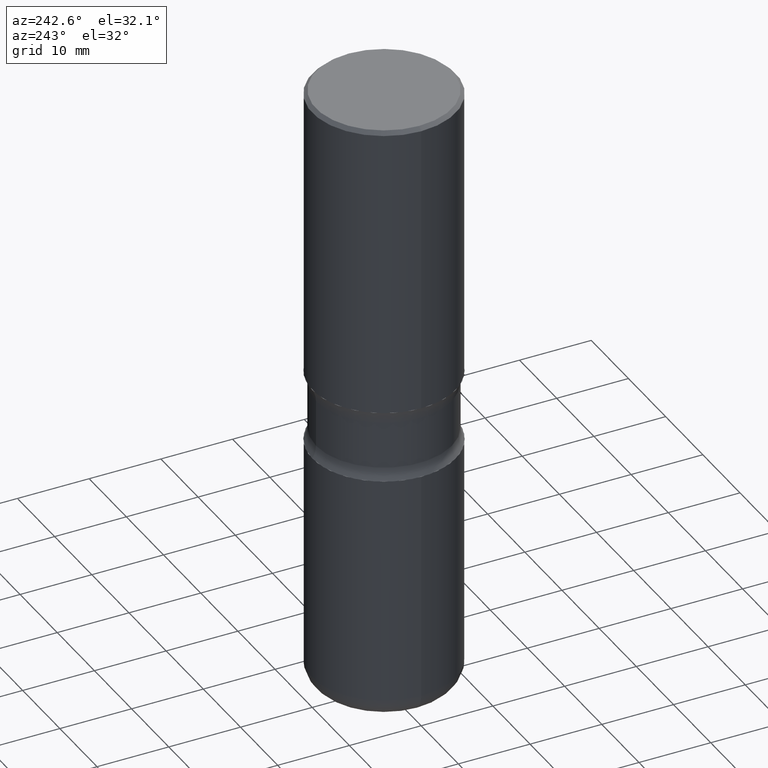
[diagram: clean part render]
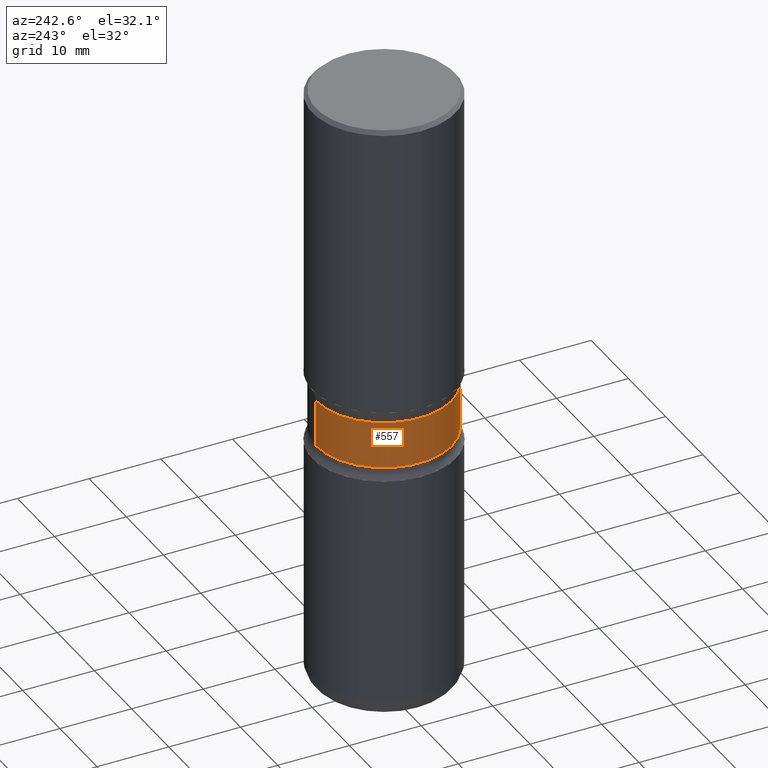
[diagram: same view with one face highlighted and labeled with its STEP entity id]
A machine part, auxiliary view. The second image highlights one B-rep face of the part: STEP entity #557.
In plain terms, the highlighted cylindrical surface (partial cylindrical patch) has radius 9.4869 mm, axis along (0, -0, -1).
Its self-contained STEP definition (entity closure, byte-faithful):
#2 = CARTESIAN_POINT ( 'NONE',  ( 4.752967058016124605E-29, -6.758611084008786993E-15, -1.939668069159900421 ) ) ;
#20 = DIRECTION ( 'NONE',  ( 6.982962677686265922E-15, 1.000000000000000000, -3.657092360996336056E-15 ) ) ;
#30 = DIRECTION ( 'NONE',  ( 2.305016298612844398E-29, -3.692617323746948219E-15, -1.000000000000000000 ) ) ;
#31 = EDGE_CURVE ( 'NONE', #160, #373, #284, .T. ) ;
#37 = CYLINDRICAL_SURFACE ( 'NONE', #344, 0.3735000000000001097 ) ;
#42 = CIRCLE ( 'NONE', #196, 0.3735000000000000542 ) ;
#60 = VECTOR ( 'NONE', #30, 39.37007874015748143 ) ;
#95 = DIRECTION ( 'NONE',  ( 2.305016298612844398E-29, -3.692617323746948219E-15, -1.000000000000000000 ) ) ;
#100 = CARTESIAN_POINT ( 'NONE',  ( 4.159572563337033897E-29, -5.807997939890574032E-15, -1.682231930840099476 ) ) ;
#118 = DIRECTION ( 'NONE',  ( 6.982962677686265922E-15, 1.000000000000000000, -4.388510833195602005E-15 ) ) ;
#158 = CARTESIAN_POINT ( 'NONE',  ( 8.086324728547017721E-29, -1.209862290425256339E-14, -3.385800000000000143 ) ) ;
#160 = VERTEX_POINT ( 'NONE', #351 ) ;
#167 = EDGE_LOOP ( 'NONE', ( #473, #168, #356, #231 ) ) ;
#168 = ORIENTED_EDGE ( 'NONE', *, *, #401, .T. ) ;
#169 = CARTESIAN_POINT ( 'NONE',  ( 2.608136560115902248E-15, 0.3734999999999880638, -3.385800000000001919 ) ) ;
#175 = EDGE_CURVE ( 'NONE', #373, #364, #227, .T. ) ;
#196 = AXIS2_PLACEMENT_3D ( 'NONE', #100, #268, #20 ) ;
#219 = VECTOR ( 'NONE', #549, 39.37007874015748143 ) ;
#227 = CIRCLE ( 'NONE', #444, 0.3735000000000002207 ) ;
#231 = ORIENTED_EDGE ( 'NONE', *, *, #175, .F. ) ;
#268 = DIRECTION ( 'NONE',  ( 2.305016298612844398E-29, -3.692617323746948219E-15, -1.000000000000000000 ) ) ;
#284 = LINE ( 'NONE', #290, #219 ) ;
#290 = CARTESIAN_POINT ( 'NONE',  ( -2.562396002167586553E-15, -0.3735000000000122111, -3.385799999999998811 ) ) ;
#311 = VERTEX_POINT ( 'NONE', #484 ) ;
#319 = CARTESIAN_POINT ( 'NONE',  ( 2.608136560115869116E-15, 0.3734999999999934484, -1.939668069159901753 ) ) ;
#329 = DIRECTION ( 'NONE',  ( 2.305016298612844398E-29, -3.692617323746948219E-15, -1.000000000000000000 ) ) ;
#343 = DIRECTION ( 'NONE',  ( 6.982962677686264344E-15, 1.000000000000000000, -3.657092360996334478E-15 ) ) ;
#344 = AXIS2_PLACEMENT_3D ( 'NONE', #158, #329, #118 ) ;
#351 = CARTESIAN_POINT ( 'NONE',  ( -2.631687031945120480E-15, -0.3735000000000058828, -1.682231930840098144 ) ) ;
#356 = ORIENTED_EDGE ( 'NONE', *, *, #494, .T. ) ;
#364 = VERTEX_POINT ( 'NONE', #319 ) ;
#373 = VERTEX_POINT ( 'NONE', #493 ) ;
#401 = EDGE_CURVE ( 'NONE', #160, #311, #42, .T. ) ;
#418 = FACE_OUTER_BOUND ( 'NONE', #167, .T. ) ;
#444 = AXIS2_PLACEMENT_3D ( 'NONE', #2, #95, #343 ) ;
#473 = ORIENTED_EDGE ( 'NONE', *, *, #31, .F. ) ;
#484 = CARTESIAN_POINT ( 'NONE',  ( 2.608136560115862410E-15, 0.3734999999999942810, -1.682231930840100809 ) ) ;
#493 = CARTESIAN_POINT ( 'NONE',  ( -2.631687031945114169E-15, -0.3735000000000069376, -1.939668069159899089 ) ) ;
#494 = EDGE_CURVE ( 'NONE', #311, #364, #553, .T. ) ;
#549 = DIRECTION ( 'NONE',  ( 2.305016298612844398E-29, -3.692617323746948219E-15, -1.000000000000000000 ) ) ;
#553 = LINE ( 'NONE', #169, #60 ) ;
#557 = ADVANCED_FACE ( 'NONE', ( #418 ), #37, .T. ) ;